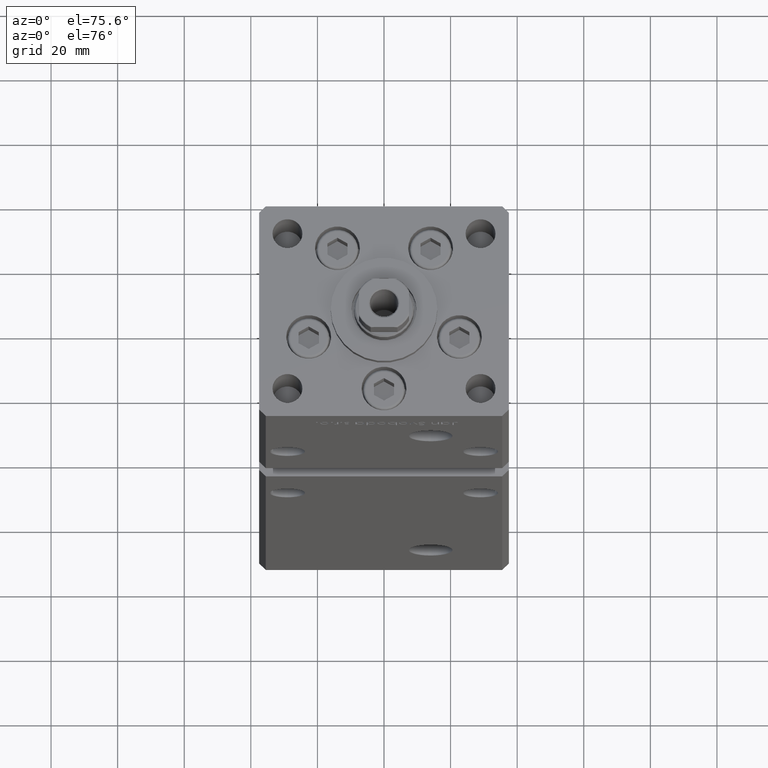
[diagram: clean part render]
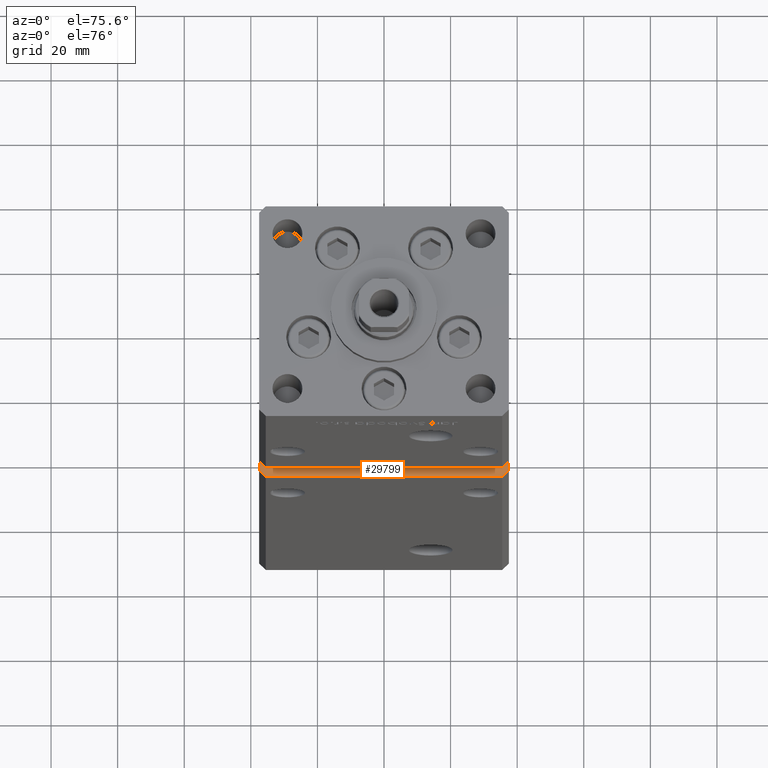
[diagram: same view with one face highlighted and labeled with its STEP entity id]
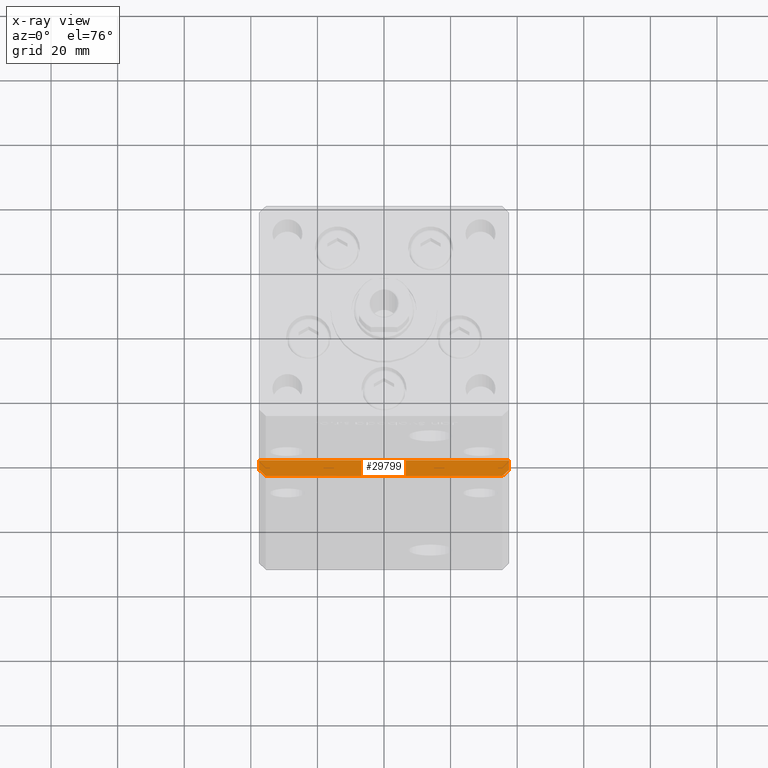
[diagram: x-ray of the same camera — body ghosted, the highlighted face saturated]
A machine part, auxiliary view. The second image highlights one B-rep face of the part: STEP entity #29799.
The next image is the same camera in x-ray: the body ghosted, the highlighted face saturated — about 0% of this face is hidden behind the body in this view.
In plain terms, the highlighted planar face has unit normal (0, 0, -1).
Its self-contained STEP definition (entity closure, byte-faithful):
#691 = AXIS2_PLACEMENT_3D ( 'NONE', #15431, #11396, #3326 ) ;
#1017 = VECTOR ( 'NONE', #7025, 1000.000000000000114 ) ;
#3326 = DIRECTION ( 'NONE',  ( -1.000000000000000000, 0.000000000000000000, -0.000000000000000000 ) ) ;
#3586 = FACE_OUTER_BOUND ( 'NONE', #13048, .T. ) ;
#3634 = CARTESIAN_POINT ( 'NONE',  ( -37.49999999999999289, -27.50000000000000000, 98.00000000000001421 ) ) ;
#3954 = CARTESIAN_POINT ( 'NONE',  ( 37.49999999999999289, -27.50000000000000000, 98.00000000000001421 ) ) ;
#4022 = VERTEX_POINT ( 'NONE', #3954 ) ;
#5896 = VERTEX_POINT ( 'NONE', #15923 ) ;
#6286 = EDGE_CURVE ( 'NONE', #49889, #34948, #17398, .T. ) ;
#7025 = DIRECTION ( 'NONE',  ( 0.7071067811865474617, 0.7071067811865474617, 0.000000000000000000 ) ) ;
#7404 = DIRECTION ( 'NONE',  ( -0.000000000000000000, -1.000000000000000000, -0.000000000000000000 ) ) ;
#8441 = EDGE_CURVE ( 'NONE', #5896, #44614, #15103, .T. ) ;
#9386 = ORIENTED_EDGE ( 'NONE', *, *, #8441, .T. ) ;
#10762 = ORIENTED_EDGE ( 'NONE', *, *, #14381, .T. ) ;
#11396 = DIRECTION ( 'NONE',  ( 0.000000000000000000, 0.000000000000000000, -1.000000000000000000 ) ) ;
#11988 = CARTESIAN_POINT ( 'NONE',  ( 37.49999999999999289, -27.50000000000000000, 98.00000000000001421 ) ) ;
#13048 = EDGE_LOOP ( 'NONE', ( #32421, #9386, #21995, #28765, #10762, #18533 ) ) ;
#14310 = CARTESIAN_POINT ( 'NONE',  ( -37.49999999999999289, -27.50000000000000000, 98.00000000000001421 ) ) ;
#14376 = EDGE_CURVE ( 'NONE', #4022, #44614, #41021, .T. ) ;
#14381 = EDGE_CURVE ( 'NONE', #21428, #34948, #24605, .T. ) ;
#15097 = LINE ( 'NONE', #14310, #47134 ) ;
#15103 = LINE ( 'NONE', #35276, #1017 ) ;
#15431 = CARTESIAN_POINT ( 'NONE',  ( -37.49999999999999289, -27.50000000000000000, 98.00000000000001421 ) ) ;
#15923 = CARTESIAN_POINT ( 'NONE',  ( 35.49999999999999289, -32.50000000000000000, 98.00000000000001421 ) ) ;
#17122 = CARTESIAN_POINT ( 'NONE',  ( -37.49999999999999289, -30.50000000000000000, 98.00000000000001421 ) ) ;
#17398 = LINE ( 'NONE', #17122, #37050 ) ;
#18533 = ORIENTED_EDGE ( 'NONE', *, *, #6286, .F. ) ;
#20001 = PLANE ( 'NONE',  #691 ) ;
#20581 = DIRECTION ( 'NONE',  ( -0.000000000000000000, -1.000000000000000000, -0.000000000000000000 ) ) ;
#21428 = VERTEX_POINT ( 'NONE', #34042 ) ;
#21995 = ORIENTED_EDGE ( 'NONE', *, *, #14376, .F. ) ;
#24605 = LINE ( 'NONE', #3634, #28681 ) ;
#26528 = VECTOR ( 'NONE', #43942, 1000.000000000000000 ) ;
#28301 = CARTESIAN_POINT ( 'NONE',  ( -35.49999999999999289, -32.50000000000000000, 98.00000000000001421 ) ) ;
#28681 = VECTOR ( 'NONE', #20581, 1000.000000000000000 ) ;
#28765 = ORIENTED_EDGE ( 'NONE', *, *, #51053, .F. ) ;
#29799 = ADVANCED_FACE ( 'NONE', ( #3586 ), #20001, .F. ) ;
#32421 = ORIENTED_EDGE ( 'NONE', *, *, #50736, .T. ) ;
#33497 = CARTESIAN_POINT ( 'NONE',  ( 37.49999999999999289, -30.50000000000000355, 98.00000000000001421 ) ) ;
#34042 = CARTESIAN_POINT ( 'NONE',  ( -37.49999999999999289, -27.50000000000000000, 98.00000000000001421 ) ) ;
#34255 = CARTESIAN_POINT ( 'NONE',  ( -37.49999999999999289, -30.50000000000000000, 98.00000000000001421 ) ) ;
#34326 = DIRECTION ( 'NONE',  ( -0.7071067811865474617, 0.7071067811865474617, 0.000000000000000000 ) ) ;
#34948 = VERTEX_POINT ( 'NONE', #34255 ) ;
#35276 = CARTESIAN_POINT ( 'NONE',  ( 37.49999999999999289, -30.50000000000000000, 98.00000000000001421 ) ) ;
#35844 = CARTESIAN_POINT ( 'NONE',  ( -37.49999999999999289, -32.50000000000000000, 98.00000000000001421 ) ) ;
#37050 = VECTOR ( 'NONE', #34326, 1000.000000000000114 ) ;
#41021 = LINE ( 'NONE', #11988, #50151 ) ;
#43942 = DIRECTION ( 'NONE',  ( 1.000000000000000000, 0.000000000000000000, 0.000000000000000000 ) ) ;
#44197 = LINE ( 'NONE', #35844, #26528 ) ;
#44614 = VERTEX_POINT ( 'NONE', #33497 ) ;
#47134 = VECTOR ( 'NONE', #47643, 1000.000000000000000 ) ;
#47643 = DIRECTION ( 'NONE',  ( 1.000000000000000000, 0.000000000000000000, 0.000000000000000000 ) ) ;
#49889 = VERTEX_POINT ( 'NONE', #28301 ) ;
#50151 = VECTOR ( 'NONE', #7404, 1000.000000000000000 ) ;
#50736 = EDGE_CURVE ( 'NONE', #49889, #5896, #44197, .T. ) ;
#51053 = EDGE_CURVE ( 'NONE', #21428, #4022, #15097, .T. ) ;